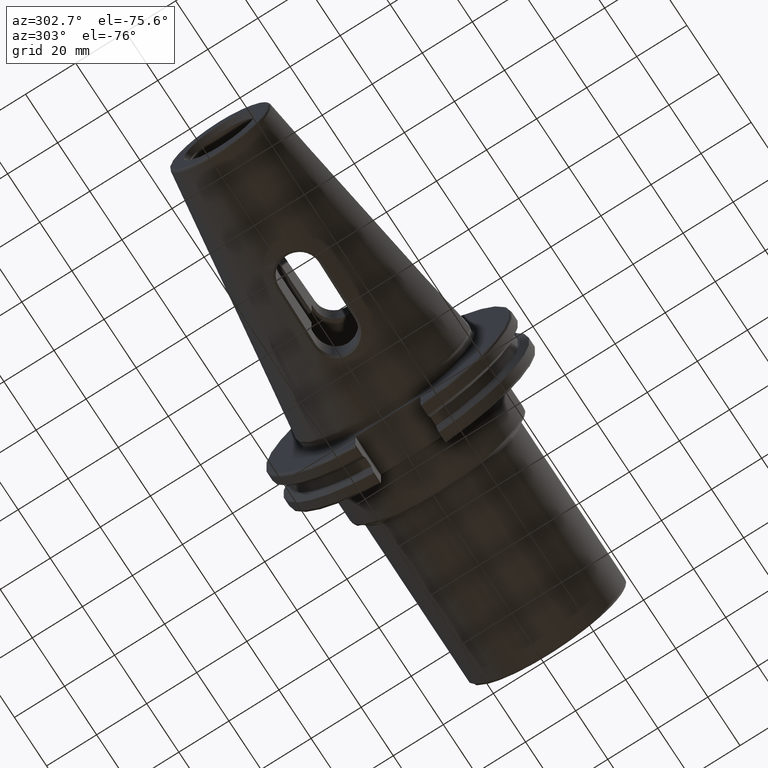
[diagram: clean part render]
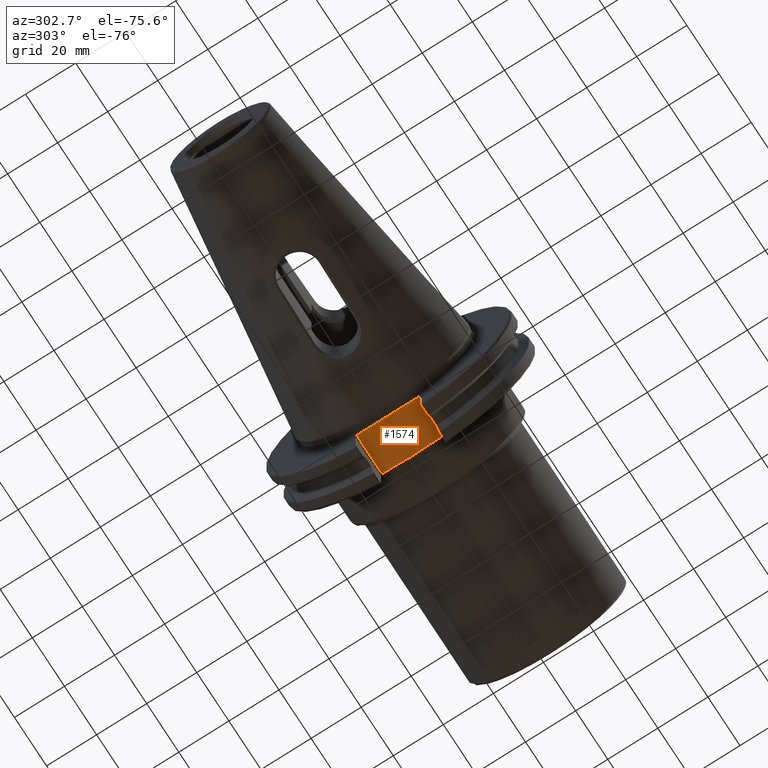
[diagram: same view with one face highlighted and labeled with its STEP entity id]
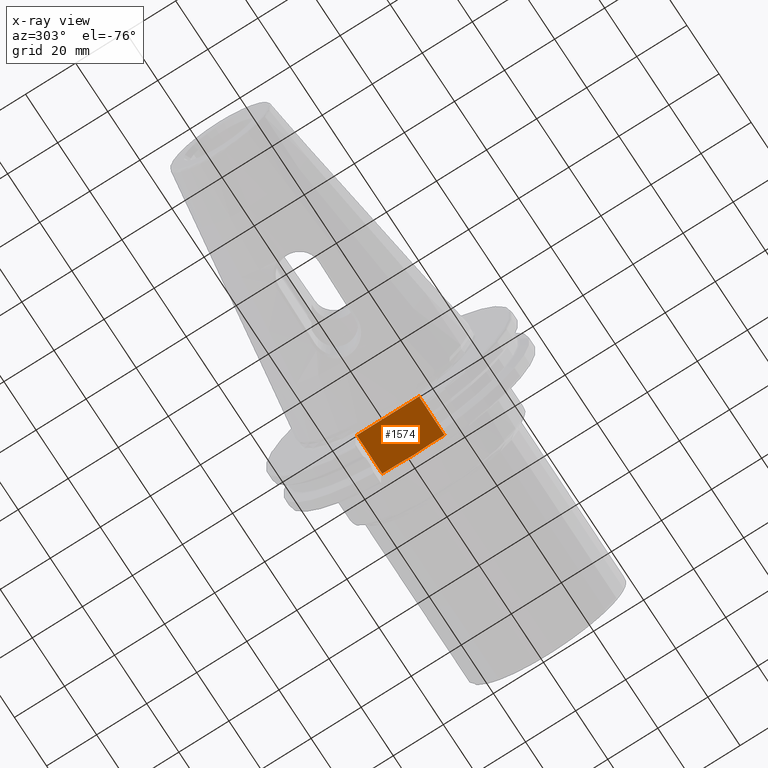
[diagram: x-ray of the same camera — body ghosted, the highlighted face saturated]
A machine part, auxiliary view. The second image highlights one B-rep face of the part: STEP entity #1574.
The next image is the same camera in x-ray: the body ghosted, the highlighted face saturated — about 0% of this face is hidden behind the body in this view.
In plain terms, the highlighted planar face has unit normal (0, 0, 1).
Its self-contained STEP definition (entity closure, byte-faithful):
#95=B_SPLINE_CURVE_WITH_KNOTS('',3,(#3054,#3055,#3056,#3057,#3058,#3059),
 .UNSPECIFIED.,.F.,.F.,(4,2,4),(2.09820602433263,2.5247494364482,2.72121070581847),
 .UNSPECIFIED.);
#96=B_SPLINE_CURVE_WITH_KNOTS('',3,(#3062,#3063,#3064,#3065,#3066,#3067),
 .UNSPECIFIED.,.F.,.F.,(4,2,4),(1.47520134284679,1.67166261221706,2.09820602433263),
 .UNSPECIFIED.);
#158=PLANE('',#1716);
#232=FACE_OUTER_BOUND('',#327,.T.);
#327=EDGE_LOOP('',(#1372,#1373,#1374,#1375,#1376,#1377,#1378));
#401=LINE('',#3091,#507);
#411=LINE('',#3114,#517);
#419=LINE('',#3144,#525);
#445=LINE('',#3379,#551);
#446=LINE('',#3381,#552);
#507=VECTOR('',#1915,10.);
#517=VECTOR('',#1929,10.);
#525=VECTOR('',#1953,10.);
#551=VECTOR('',#2029,10.);
#552=VECTOR('',#2032,10.);
#697=VERTEX_POINT('',#3051);
#698=VERTEX_POINT('',#3053);
#699=VERTEX_POINT('',#3060);
#705=VERTEX_POINT('',#3090);
#716=VERTEX_POINT('',#3112);
#729=VERTEX_POINT('',#3141);
#730=VERTEX_POINT('',#3143);
#887=EDGE_CURVE('',#698,#697,#95,.F.);
#889=EDGE_CURVE('',#697,#699,#96,.F.);
#900=EDGE_CURVE('',#698,#705,#401,.T.);
#912=EDGE_CURVE('',#716,#699,#411,.T.);
#926=EDGE_CURVE('',#729,#730,#419,.T.);
#987=EDGE_CURVE('',#705,#729,#445,.T.);
#988=EDGE_CURVE('',#730,#716,#446,.T.);
#1372=ORIENTED_EDGE('',*,*,#987,.F.);
#1373=ORIENTED_EDGE('',*,*,#900,.F.);
#1374=ORIENTED_EDGE('',*,*,#887,.T.);
#1375=ORIENTED_EDGE('',*,*,#889,.T.);
#1376=ORIENTED_EDGE('',*,*,#912,.F.);
#1377=ORIENTED_EDGE('',*,*,#988,.F.);
#1378=ORIENTED_EDGE('',*,*,#926,.F.);
#1574=ADVANCED_FACE('',(#232),#158,.F.);
#1716=AXIS2_PLACEMENT_3D('',#3380,#2030,#2031);
#1915=DIRECTION('',(0.,1.,0.));
#1929=DIRECTION('',(0.,1.,0.));
#1953=DIRECTION('',(0.,-1.,0.));
#2029=DIRECTION('',(-1.,2.63163976207444E-16,0.));
#2030=DIRECTION('center_axis',(0.,0.,1.));
#2031=DIRECTION('ref_axis',(1.,0.,0.));
#2032=DIRECTION('',(1.,2.63163976207445E-16,0.));
#3051=CARTESIAN_POINT('',(19.2646090145666,-2.50881368973018E-15,-35.306));
#3053=CARTESIAN_POINT('',(19.05,6.64017989214148,-35.306));
#3054=CARTESIAN_POINT('Ctrl Pts',(19.2646090145666,-6.93889390390723E-16,
-35.306));
#3055=CARTESIAN_POINT('Ctrl Pts',(19.2646090145666,1.42181137371857,-35.306));
#3056=CARTESIAN_POINT('Ctrl Pts',(19.1680602893707,3.12525108863957,-35.306));
#3057=CARTESIAN_POINT('Ctrl Pts',(19.0762097808881,5.19990111728298,-35.306));
#3058=CARTESIAN_POINT('Ctrl Pts',(19.05,5.98530899424058,-35.306));
#3059=CARTESIAN_POINT('Ctrl Pts',(19.05,6.64017989214148,-35.306));
#3060=CARTESIAN_POINT('',(19.05,-6.64017989214148,-35.306));
#3062=CARTESIAN_POINT('Ctrl Pts',(19.05,-6.64017989214148,-35.306));
#3063=CARTESIAN_POINT('Ctrl Pts',(19.05,-5.98530899424058,-35.306));
#3064=CARTESIAN_POINT('Ctrl Pts',(19.0762097808881,-5.19990111728298,-35.306));
#3065=CARTESIAN_POINT('Ctrl Pts',(19.1680602893707,-3.12525108863957,-35.306));
#3066=CARTESIAN_POINT('Ctrl Pts',(19.2646090145666,-1.42181137371857,-35.306));
#3067=CARTESIAN_POINT('Ctrl Pts',(19.2646090145666,5.55111512312578E-16,
-35.306));
#3090=CARTESIAN_POINT('',(19.05,12.45,-35.306));
#3091=CARTESIAN_POINT('',(19.05,-3.33066907387547E-15,-35.306));
#3112=CARTESIAN_POINT('',(19.05,-12.45,-35.306));
#3114=CARTESIAN_POINT('',(19.05,-3.33066907387547E-15,-35.306));
#3141=CARTESIAN_POINT('',(3.175,12.45,-35.306));
#3143=CARTESIAN_POINT('',(3.175,-12.45,-35.306));
#3144=CARTESIAN_POINT('',(3.175,24.60625,-35.306));
#3379=CARTESIAN_POINT('',(10.63125,12.45,-35.306));
#3380=CARTESIAN_POINT('Origin',(18.0875,-6.66133814775094E-15,-35.306));
#3381=CARTESIAN_POINT('',(19.06875,-12.45,-35.306));